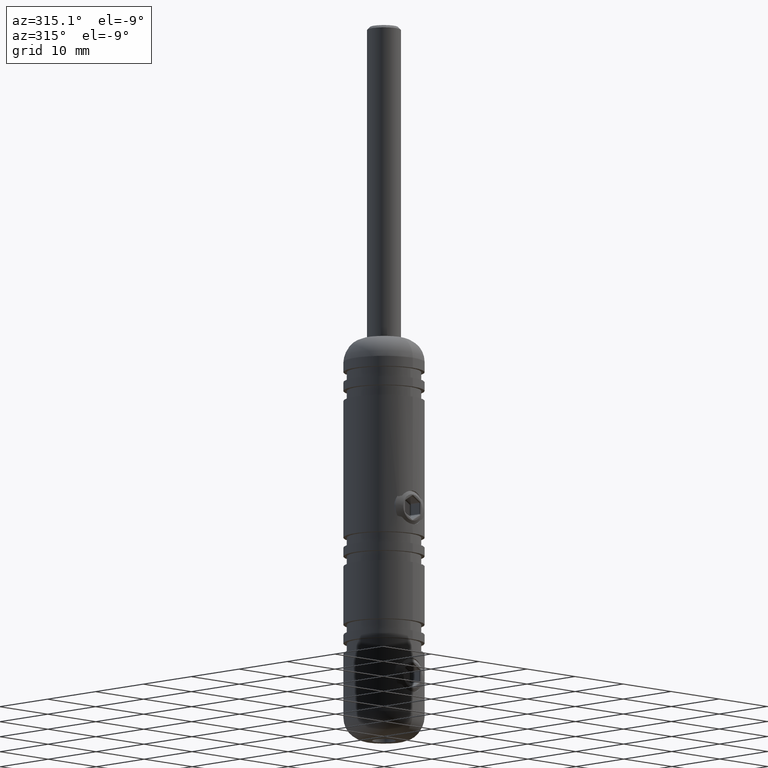
[diagram: clean part render]
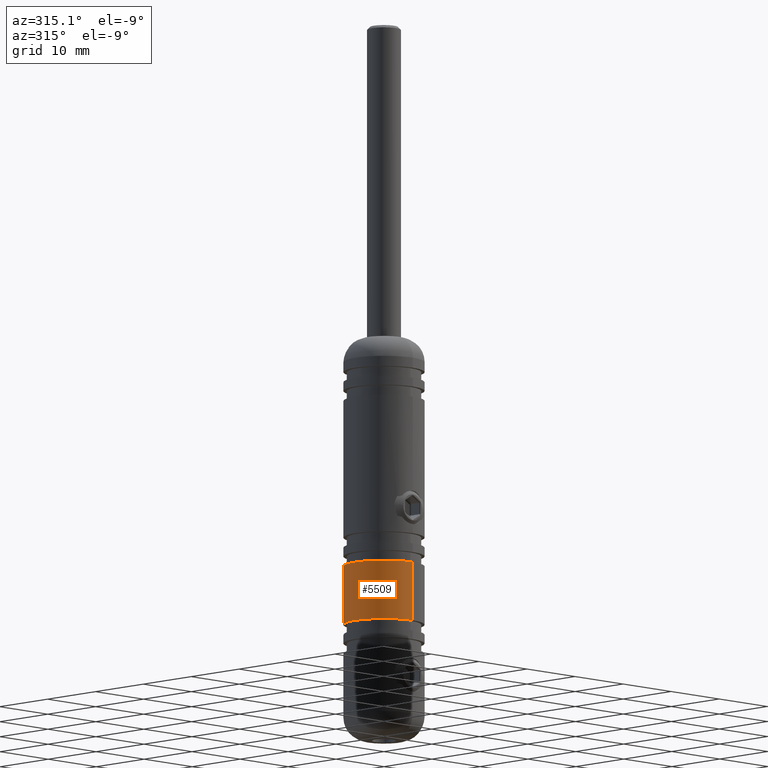
[diagram: same view with one face highlighted and labeled with its STEP entity id]
A machine part, auxiliary view. The second image highlights one B-rep face of the part: STEP entity #5509.
In plain terms, the highlighted cylindrical surface (partial cylindrical patch) has radius 6 mm, axis along (0, 0, 1).
Its self-contained STEP definition (entity closure, byte-faithful):
#97 = ORIENTED_EDGE ( 'NONE', *, *, #13753, .F. ) ;
#193 = VERTEX_POINT ( 'NONE', #12319 ) ;
#294 = EDGE_CURVE ( 'NONE', #7899, #13134, #8943, .T. ) ;
#295 = CARTESIAN_POINT ( 'NONE',  ( 7.347880794884094100E-016, 5.999999999999977800, -4.000000000000003600 ) ) ;
#407 = CARTESIAN_POINT ( 'NONE',  ( 7.347880794884094100E-016, 5.999999999999979600, 30.00000000000000000 ) ) ;
#575 = CARTESIAN_POINT ( 'NONE',  ( -1.655142058905327400, 5.768422958052112500, -6.469449569317737000 ) ) ;
#746 = CARTESIAN_POINT ( 'NONE',  ( -2.500106784638723000, 5.454307112671438400, -8.513628119896189600 ) ) ;
#799 = CARTESIAN_POINT ( 'NONE',  ( -0.8134068127896111300, 5.946577916524672600, -5.980364398952573000 ) ) ;
#984 = VERTEX_POINT ( 'NONE', #6372 ) ;
#1004 = CIRCLE ( 'NONE', #3231, 5.999999999999980500 ) ;
#1850 = CARTESIAN_POINT ( 'NONE',  ( 0.0000000000000000000, -2.122127474650550100E-015, -4.000000000000003600 ) ) ;
#1915 = CARTESIAN_POINT ( 'NONE',  ( -2.483561809314555700, 5.461976513600076200, -8.019621045319118100 ) ) ;
#1974 = CARTESIAN_POINT ( 'NONE',  ( -1.112789484202403800, 5.897869239595866700, -10.59459194568942800 ) ) ;
#2081 = CARTESIAN_POINT ( 'NONE',  ( 7.347777944808310000E-016, 5.999999999999976900, -10.85000000000000100 ) ) ;
#2096 = ORIENTED_EDGE ( 'NONE', *, *, #294, .F. ) ;
#2137 = CARTESIAN_POINT ( 'NONE',  ( -1.996726160520223800, 5.663027394641061600, -6.811512018285261800 ) ) ;
#3231 = AXIS2_PLACEMENT_3D ( 'NONE', #7379, #4676, #9899 ) ;
#3249 = CARTESIAN_POINT ( 'NONE',  ( -1.258442380232152000, 5.868189014291102600, -6.183703495810528100 ) ) ;
#3252 = CARTESIAN_POINT ( 'NONE',  ( 1.289730737622532200E-016, 5.999999999999976900, -5.850000000000003200 ) ) ;
#3311 = CARTESIAN_POINT ( 'NONE',  ( -2.369582593462938600, 5.512683608006660100, -7.536677635524413600 ) ) ;
#4000 = DIRECTION ( 'NONE',  ( -0.0000000000000000000, 6.241551396031028600E-017, 1.000000000000000000 ) ) ;
#4117 = CARTESIAN_POINT ( 'NONE',  ( 0.0000000000000000000, 0.0000000000000000000, 30.00000000000000000 ) ) ;
#4423 = EDGE_CURVE ( 'NONE', #6225, #193, #13882, .T. ) ;
#4515 = ORIENTED_EDGE ( 'NONE', *, *, #17014, .T. ) ;
#4664 = CARTESIAN_POINT ( 'NONE',  ( -2.483395613810239800, 5.462051476449257600, -8.681345251360895100 ) ) ;
#4676 = DIRECTION ( 'NONE',  ( -0.0000000000000000000, 6.241551396031028600E-017, 1.000000000000000000 ) ) ;
#4724 = CARTESIAN_POINT ( 'NONE',  ( -2.181708341974953700, 5.590935308825273800, -7.086746876611121200 ) ) ;
#5295 = FACE_OUTER_BOUND ( 'NONE', #10448, .T. ) ;
#5509 = ADVANCED_FACE ( 'NONE', ( #5295 ), #10750, .T. ) ;
#5854 = DIRECTION ( 'NONE',  ( -0.0000000000000000000, 6.241551396031028600E-017, 1.000000000000000000 ) ) ;
#6075 = CARTESIAN_POINT ( 'NONE',  ( -0.3294735782554638100, 5.999999999999980500, -10.85000000000000300 ) ) ;
#6129 = CARTESIAN_POINT ( 'NONE',  ( -1.258252906115198100, 5.868227615580726000, -10.51639808306989500 ) ) ;
#6188 = CARTESIAN_POINT ( 'NONE',  ( -1.652909006526312600, 5.769071837164835500, -10.23254878103047900 ) ) ;
#6207 = ORIENTED_EDGE ( 'NONE', *, *, #4423, .F. ) ;
#6220 = AXIS2_PLACEMENT_3D ( 'NONE', #1850, #15394, #12579 ) ;
#6225 = VERTEX_POINT ( 'NONE', #295 ) ;
#6261 = EDGE_CURVE ( 'NONE', #13322, #13134, #16896, .T. ) ;
#6372 = CARTESIAN_POINT ( 'NONE',  ( 0.0000000000000000000, -5.999999999999983100, -12.70000000000000300 ) ) ;
#6772 = CARTESIAN_POINT ( 'NONE',  ( 0.0000000000000000000, -5.999999999999979600, 30.00000000000000000 ) ) ;
#7311 = CARTESIAN_POINT ( 'NONE',  ( -2.166361182966829000, 5.596081245774383800, -9.608215165936130100 ) ) ;
#7367 = CARTESIAN_POINT ( 'NONE',  ( -2.418590853962363500, 5.491054996713677000, -7.696052146183328400 ) ) ;
#7379 = CARTESIAN_POINT ( 'NONE',  ( 0.0000000000000000000, -2.665142446105249500E-015, -12.70000000000000300 ) ) ;
#7571 = VECTOR ( 'NONE', #4000, 1000.000000000000000 ) ;
#7899 = VERTEX_POINT ( 'NONE', #9613 ) ;
#8321 = CARTESIAN_POINT ( 'NONE',  ( 1.289730737622532200E-016, 5.999999999999976900, -5.850000000000003200 ) ) ;
#8768 = CARTESIAN_POINT ( 'NONE',  ( -1.115495851646002100, 5.897379805078865700, -6.106682695246944600 ) ) ;
#8943 = LINE ( 'NONE', #407, #12520 ) ;
#9613 = CARTESIAN_POINT ( 'NONE',  ( 7.347880794884094100E-016, 5.999999999999977800, -12.70000000000000300 ) ) ;
#9899 = DIRECTION ( 'NONE',  ( 0.0000000000000000000, -1.000000000000000000, 0.0000000000000000000 ) ) ;
#10118 = CARTESIAN_POINT ( 'NONE',  ( -2.243493183772680600, 5.565201832296425600, -9.465307215877013300 ) ) ;
#10172 = CARTESIAN_POINT ( 'NONE',  ( -1.528829007836516500, 5.803619680562189100, -6.365258295589700100 ) ) ;
#10265 = EDGE_CURVE ( 'NONE', #7899, #984, #1004, .T. ) ;
#10448 = EDGE_LOOP ( 'NONE', ( #2096, #10462, #4515, #6207, #97, #17026 ) ) ;
#10462 = ORIENTED_EDGE ( 'NONE', *, *, #10265, .T. ) ;
#10750 = CYLINDRICAL_SURFACE ( 'NONE', #15609, 5.999999999999979600 ) ;
#11003 = LINE ( 'NONE', #12670, #15760 ) ;
#11360 = CARTESIAN_POINT ( 'NONE',  ( -2.418593444814171700, 5.491053255503480600, -9.003795991876115700 ) ) ;
#11420 = CARTESIAN_POINT ( 'NONE',  ( -0.1672401054569760700, 5.999999999999974200, -5.850000000000004100 ) ) ;
#11540 = CARTESIAN_POINT ( 'NONE',  ( -2.499892161112044200, 5.454405485178506700, -8.183124959841537200 ) ) ;
#12319 = CARTESIAN_POINT ( 'NONE',  ( 0.0000000000000000000, -5.999999999999981300, -4.000000000000003600 ) ) ;
#12520 = VECTOR ( 'NONE', #5854, 1000.000000000000000 ) ;
#12579 = DIRECTION ( 'NONE',  ( 0.0000000000000000000, -1.000000000000000000, 0.0000000000000000000 ) ) ;
#12635 = CARTESIAN_POINT ( 'NONE',  ( -0.6621311939231084900, 5.971116335839139900, -10.78260272902401500 ) ) ;
#12670 = CARTESIAN_POINT ( 'NONE',  ( 7.347880794884094100E-016, 5.999999999999979600, 30.00000000000000000 ) ) ;
#12694 = CARTESIAN_POINT ( 'NONE',  ( -0.6535671553393459500, 5.966488535110073600, -5.931352177383443400 ) ) ;
#12750 = CARTESIAN_POINT ( 'NONE',  ( -0.3313286651165032200, 5.993025678387374100, -5.866609448343196800 ) ) ;
#12858 = CARTESIAN_POINT ( 'NONE',  ( -1.528475880810603400, 5.803710641115029200, -10.33500441104207800 ) ) ;
#13134 = VERTEX_POINT ( 'NONE', #16548 ) ;
#13315 = DIRECTION ( 'NONE',  ( 0.0000000000000000000, -1.000000000000000000, 0.0000000000000000000 ) ) ;
#13322 = VERTEX_POINT ( 'NONE', #3252 ) ;
#13753 = EDGE_CURVE ( 'NONE', #13322, #6225, #11003, .T. ) ;
#13882 = CIRCLE ( 'NONE', #6220, 5.999999999999979600 ) ;
#14073 = CARTESIAN_POINT ( 'NONE',  ( -2.370510600221101200, 5.512296490036558100, -9.161080357092442800 ) ) ;
#14186 = CARTESIAN_POINT ( 'NONE',  ( -1.985928082928957600, 5.662626222328940500, -9.877192138629336400 ) ) ;
#15292 = LINE ( 'NONE', #6772, #7571 ) ;
#15394 = DIRECTION ( 'NONE',  ( -0.0000000000000000000, 6.241551396031028600E-017, 1.000000000000000000 ) ) ;
#15400 = CARTESIAN_POINT ( 'NONE',  ( -1.881449780072504300, 5.698635342894768900, -10.00415985378689300 ) ) ;
#15609 = AXIS2_PLACEMENT_3D ( 'NONE', #4117, #16145, #13315 ) ;
#15760 = VECTOR ( 'NONE', #16565, 1000.000000000000000 ) ;
#16145 = DIRECTION ( 'NONE',  ( -0.0000000000000000000, 6.241551396031028600E-017, 1.000000000000000000 ) ) ;
#16548 = CARTESIAN_POINT ( 'NONE',  ( 7.347777944808310000E-016, 5.999999999999976900, -10.85000000000000100 ) ) ;
#16565 = DIRECTION ( 'NONE',  ( -0.0000000000000000000, 6.241551396031028600E-017, 1.000000000000000000 ) ) ;
#16896 = B_SPLINE_CURVE_WITH_KNOTS ( 'NONE', 3,
 ( #8321, #11420, #12750, #12694, #799, #8768, #3249, #10172, #575, #2137, #4724, #3311, #7367, #1915, #11540, #746, #4664, #11360, #14073, #10118, #7311, #14186, #15400, #6188, #12858, #6129, #1974, #12635, #6075, #2081 ),
 .UNSPECIFIED., .F., .F.,
 ( 4, 2, 2, 2, 2, 2, 2, 2, 2, 2, 2, 2, 2, 2, 4 ),
 ( 4.534268493944095300E-019, 0.0004942134665145547100, 0.0009884269330291089800, 0.001482640399543663300, 0.001976853866058217500, 0.002965280799087328300, 0.003459494265601883000, 0.003953707732116440300, 0.004447921198630996700, 0.004942134665145554000, 0.005436348131660110500, 0.005930561598174666900, 0.006424775064689225100, 0.006918988531203781500, 0.007907415464232894400 ),
 .UNSPECIFIED. ) ;
#17014 = EDGE_CURVE ( 'NONE', #984, #193, #15292, .T. ) ;
#17026 = ORIENTED_EDGE ( 'NONE', *, *, #6261, .T. ) ;